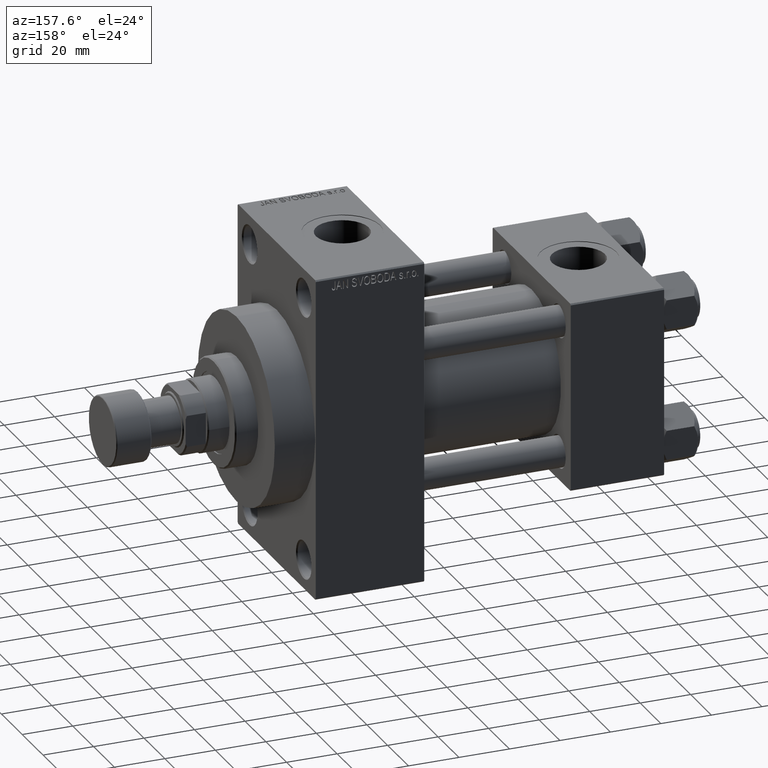
[diagram: clean part render]
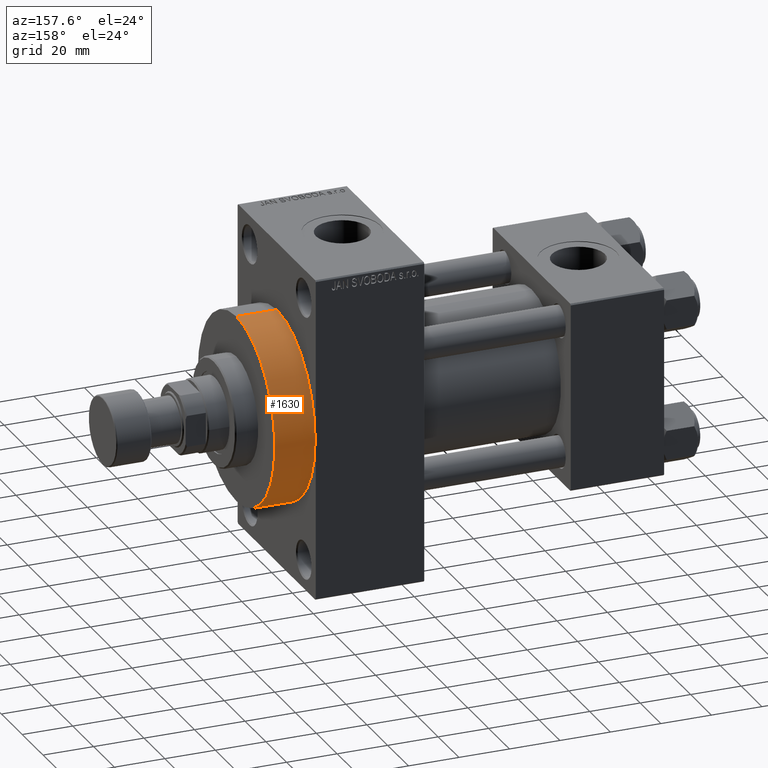
[diagram: same view with one face highlighted and labeled with its STEP entity id]
A machine part, auxiliary view. The second image highlights one B-rep face of the part: STEP entity #1630.
In plain terms, the highlighted cylindrical surface (partial cylindrical patch) has radius 37 mm, axis along (-1, -0, -0).
Its self-contained STEP definition (entity closure, byte-faithful):
#33 = EDGE_CURVE ( 'NONE', #34833, #44474, #28862, .T. ) ;
#1630 = ADVANCED_FACE ( 'NONE', ( #41906 ), #38527, .T. ) ;
#4070 = CARTESIAN_POINT ( 'NONE',  ( 138.0000000000000000, 0.000000000000000000, 37.00000000000000000 ) ) ;
#4721 = EDGE_CURVE ( 'NONE', #32396, #9315, #39802, .T. ) ;
#5354 = DIRECTION ( 'NONE',  ( 0.000000000000000000, 0.000000000000000000, -1.000000000000000000 ) ) ;
#6361 = EDGE_CURVE ( 'NONE', #9315, #44474, #33578, .T. ) ;
#6370 = CARTESIAN_POINT ( 'NONE',  ( 138.0000000000000000, 4.531193156845206793E-15, -37.00000000000000000 ) ) ;
#7438 = CARTESIAN_POINT ( 'NONE',  ( 154.0000000000000284, 0.000000000000000000, 37.00000000000000000 ) ) ;
#9315 = VERTEX_POINT ( 'NONE', #6370 ) ;
#9621 = CIRCLE ( 'NONE', #36528, 37.00000000000000000 ) ;
#12794 = VECTOR ( 'NONE', #28945, 1000.000000000000000 ) ;
#13523 = EDGE_LOOP ( 'NONE', ( #41142, #18792, #37757, #19274 ) ) ;
#13557 = CARTESIAN_POINT ( 'NONE',  ( 154.0000000000000284, 4.531193156845206793E-15, -37.00000000000000000 ) ) ;
#18792 = ORIENTED_EDGE ( 'NONE', *, *, #4721, .T. ) ;
#19274 = ORIENTED_EDGE ( 'NONE', *, *, #33, .F. ) ;
#22921 = DIRECTION ( 'NONE',  ( 1.000000000000000000, 0.000000000000000000, 0.000000000000000000 ) ) ;
#23567 = CARTESIAN_POINT ( 'NONE',  ( 154.0000000000000284, 0.000000000000000000, 0.000000000000000000 ) ) ;
#26726 = CARTESIAN_POINT ( 'NONE',  ( 154.0000000000000284, 4.531193156845206793E-15, -37.00000000000000000 ) ) ;
#27198 = DIRECTION ( 'NONE',  ( 0.000000000000000000, 0.000000000000000000, 1.000000000000000000 ) ) ;
#28862 = LINE ( 'NONE', #7438, #38673 ) ;
#28945 = DIRECTION ( 'NONE',  ( -1.000000000000000000, -0.000000000000000000, -0.000000000000000000 ) ) ;
#32396 = VERTEX_POINT ( 'NONE', #26726 ) ;
#33524 = DIRECTION ( 'NONE',  ( 0.000000000000000000, 0.000000000000000000, -1.000000000000000000 ) ) ;
#33578 = CIRCLE ( 'NONE', #46665, 37.00000000000000000 ) ;
#34492 = DIRECTION ( 'NONE',  ( 1.000000000000000000, 0.000000000000000000, 0.000000000000000000 ) ) ;
#34567 = CARTESIAN_POINT ( 'NONE',  ( 154.0000000000000284, 0.000000000000000000, 37.00000000000000000 ) ) ;
#34833 = VERTEX_POINT ( 'NONE', #34567 ) ;
#35367 = DIRECTION ( 'NONE',  ( -1.000000000000000000, -0.000000000000000000, -0.000000000000000000 ) ) ;
#36528 = AXIS2_PLACEMENT_3D ( 'NONE', #44157, #22921, #33524 ) ;
#37757 = ORIENTED_EDGE ( 'NONE', *, *, #6361, .T. ) ;
#38527 = CYLINDRICAL_SURFACE ( 'NONE', #40377, 37.00000000000000000 ) ;
#38673 = VECTOR ( 'NONE', #40199, 1000.000000000000000 ) ;
#39802 = LINE ( 'NONE', #13557, #12794 ) ;
#40140 = EDGE_CURVE ( 'NONE', #32396, #34833, #9621, .T. ) ;
#40199 = DIRECTION ( 'NONE',  ( -1.000000000000000000, -0.000000000000000000, -0.000000000000000000 ) ) ;
#40377 = AXIS2_PLACEMENT_3D ( 'NONE', #23567, #35367, #27198 ) ;
#41142 = ORIENTED_EDGE ( 'NONE', *, *, #40140, .F. ) ;
#41906 = FACE_OUTER_BOUND ( 'NONE', #13523, .T. ) ;
#44157 = CARTESIAN_POINT ( 'NONE',  ( 154.0000000000000284, 0.000000000000000000, 0.000000000000000000 ) ) ;
#44474 = VERTEX_POINT ( 'NONE', #4070 ) ;
#45828 = CARTESIAN_POINT ( 'NONE',  ( 138.0000000000000000, 0.000000000000000000, 0.000000000000000000 ) ) ;
#46665 = AXIS2_PLACEMENT_3D ( 'NONE', #45828, #34492, #5354 ) ;